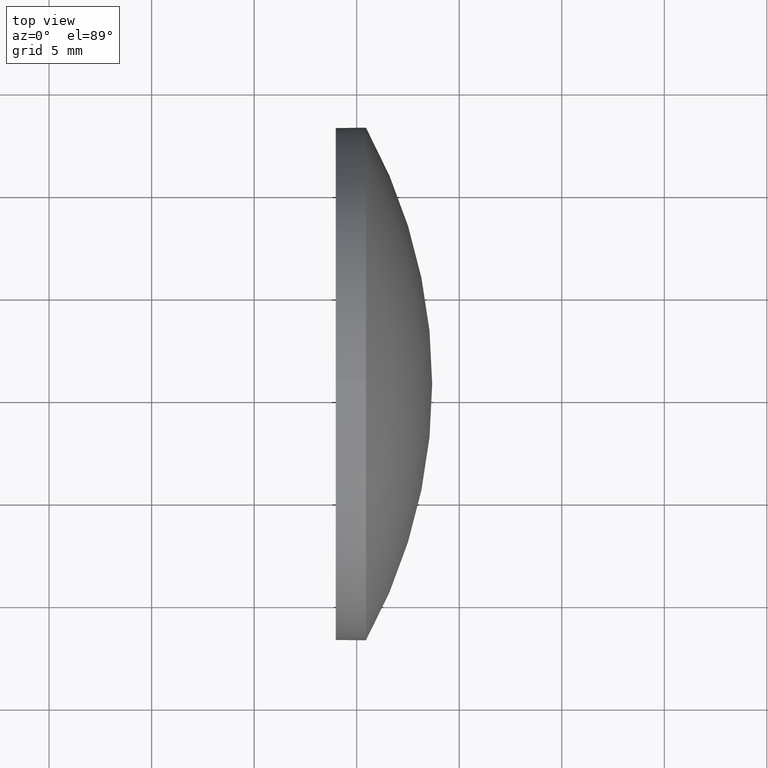
[diagram: clean part render]
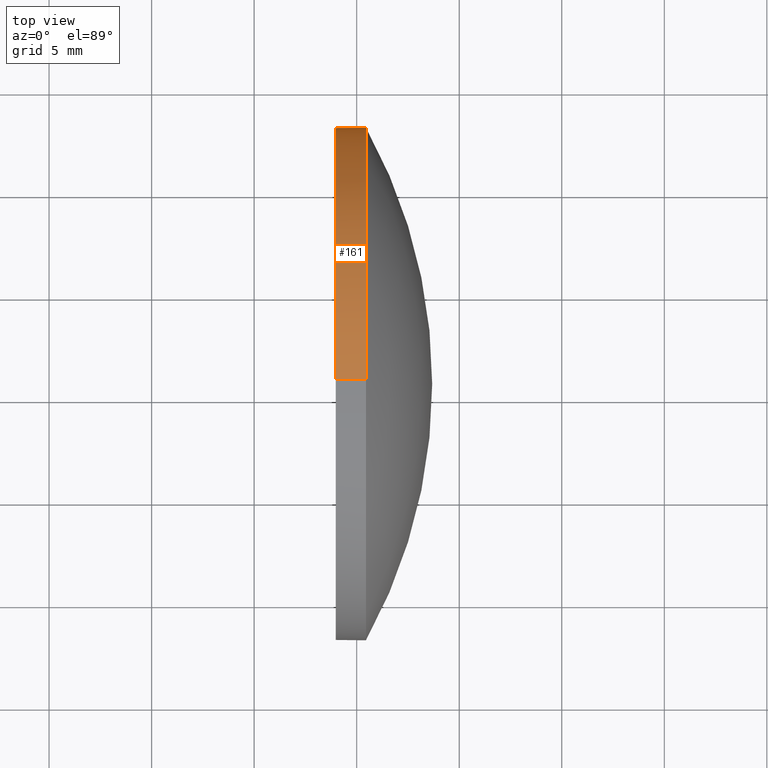
[diagram: same view with one face highlighted and labeled with its STEP entity id]
A machine part, top view. The second image highlights one B-rep face of the part: STEP entity #161.
In plain terms, the highlighted cylindrical surface (partial cylindrical patch) has radius 12.5 mm, axis along (-1, -0, -0).
Its self-contained STEP definition (entity closure, byte-faithful):
#5 = LINE ( 'NONE', #7, #134 ) ;
#7 = CARTESIAN_POINT ( 'NONE',  ( 529.2401241325956100, 140.6810653436631100, 12.49999999999998400 ) ) ;
#8 = VERTEX_POINT ( 'NONE', #148 ) ;
#9 = CARTESIAN_POINT ( 'NONE',  ( 533.9821553744856100, 140.6810653436631100, 0.0000000000000000000 ) ) ;
#16 = ORIENTED_EDGE ( 'NONE', *, *, #90, .F. ) ;
#25 = DIRECTION ( 'NONE',  ( -1.000000000000000000, -0.0000000000000000000, -0.0000000000000000000 ) ) ;
#26 = DIRECTION ( 'NONE',  ( -1.000000000000000000, -0.0000000000000000000, -0.0000000000000000000 ) ) ;
#36 = ORIENTED_EDGE ( 'NONE', *, *, #121, .T. ) ;
#43 = DIRECTION ( 'NONE',  ( 0.0000000000000000000, 0.0000000000000000000, 1.000000000000000000 ) ) ;
#47 = AXIS2_PLACEMENT_3D ( 'NONE', #126, #82, #43 ) ;
#48 = VERTEX_POINT ( 'NONE', #118 ) ;
#51 = CIRCLE ( 'NONE', #47, 12.49999999999998400 ) ;
#53 = ORIENTED_EDGE ( 'NONE', *, *, #71, .T. ) ;
#63 = CARTESIAN_POINT ( 'NONE',  ( 535.4521553744855300, 140.6810653436631100, 0.0000000000000000000 ) ) ;
#71 = EDGE_CURVE ( 'NONE', #8, #115, #173, .T. ) ;
#73 = VECTOR ( 'NONE', #26, 1000.000000000000000 ) ;
#77 = DIRECTION ( 'NONE',  ( -1.000000000000000000, -0.0000000000000000000, -0.0000000000000000000 ) ) ;
#78 = EDGE_CURVE ( 'NONE', #8, #48, #5, .T. ) ;
#79 = FACE_OUTER_BOUND ( 'NONE', #83, .T. ) ;
#80 = CARTESIAN_POINT ( 'NONE',  ( 535.4521553744855300, 140.6810653436631100, -12.49999999999998400 ) ) ;
#81 = AXIS2_PLACEMENT_3D ( 'NONE', #9, #171, #138 ) ;
#82 = DIRECTION ( 'NONE',  ( -1.000000000000000000, -0.0000000000000000000, -0.0000000000000000000 ) ) ;
#83 = EDGE_LOOP ( 'NONE', ( #36, #114, #16, #183, #53 ) ) ;
#90 = EDGE_CURVE ( 'NONE', #48, #97, #127, .T. ) ;
#93 = VERTEX_POINT ( 'NONE', #80 ) ;
#97 = VERTEX_POINT ( 'NONE', #151 ) ;
#98 = CARTESIAN_POINT ( 'NONE',  ( 529.2401241325956100, 140.6810653436631100, 0.0000000000000000000 ) ) ;
#105 = LINE ( 'NONE', #125, #73 ) ;
#108 = CARTESIAN_POINT ( 'NONE',  ( 535.4521553744855300, 153.1810653436630500, 0.0000000000000000000 ) ) ;
#114 = ORIENTED_EDGE ( 'NONE', *, *, #131, .T. ) ;
#115 = VERTEX_POINT ( 'NONE', #108 ) ;
#118 = CARTESIAN_POINT ( 'NONE',  ( 533.9821553744856100, 140.6810653436631100, 12.49999999999998400 ) ) ;
#120 = DIRECTION ( 'NONE',  ( -1.000000000000000000, -0.0000000000000000000, -0.0000000000000000000 ) ) ;
#121 = EDGE_CURVE ( 'NONE', #115, #93, #51, .T. ) ;
#125 = CARTESIAN_POINT ( 'NONE',  ( 529.2401241325956100, 140.6810653436631100, -12.49999999999998400 ) ) ;
#126 = CARTESIAN_POINT ( 'NONE',  ( 535.4521553744855300, 140.6810653436631100, 0.0000000000000000000 ) ) ;
#127 = CIRCLE ( 'NONE', #81, 12.49999999999998400 ) ;
#131 = EDGE_CURVE ( 'NONE', #93, #97, #105, .T. ) ;
#134 = VECTOR ( 'NONE', #77, 1000.000000000000000 ) ;
#135 = DIRECTION ( 'NONE',  ( 0.0000000000000000000, 0.0000000000000000000, 1.000000000000000000 ) ) ;
#138 = DIRECTION ( 'NONE',  ( 0.0000000000000000000, 0.0000000000000000000, 1.000000000000000000 ) ) ;
#143 = AXIS2_PLACEMENT_3D ( 'NONE', #63, #120, #135 ) ;
#148 = CARTESIAN_POINT ( 'NONE',  ( 535.4521553744855300, 140.6810653436631100, 12.49999999999998400 ) ) ;
#151 = CARTESIAN_POINT ( 'NONE',  ( 533.9821553744856100, 140.6810653436631100, -12.49999999999998400 ) ) ;
#157 = DIRECTION ( 'NONE',  ( 0.0000000000000000000, 0.0000000000000000000, 1.000000000000000000 ) ) ;
#161 = ADVANCED_FACE ( 'NONE', ( #79 ), #180, .T. ) ;
#171 = DIRECTION ( 'NONE',  ( -1.000000000000000000, -0.0000000000000000000, -0.0000000000000000000 ) ) ;
#173 = CIRCLE ( 'NONE', #143, 12.49999999999998400 ) ;
#180 = CYLINDRICAL_SURFACE ( 'NONE', #184, 12.49999999999998400 ) ;
#183 = ORIENTED_EDGE ( 'NONE', *, *, #78, .F. ) ;
#184 = AXIS2_PLACEMENT_3D ( 'NONE', #98, #25, #157 ) ;